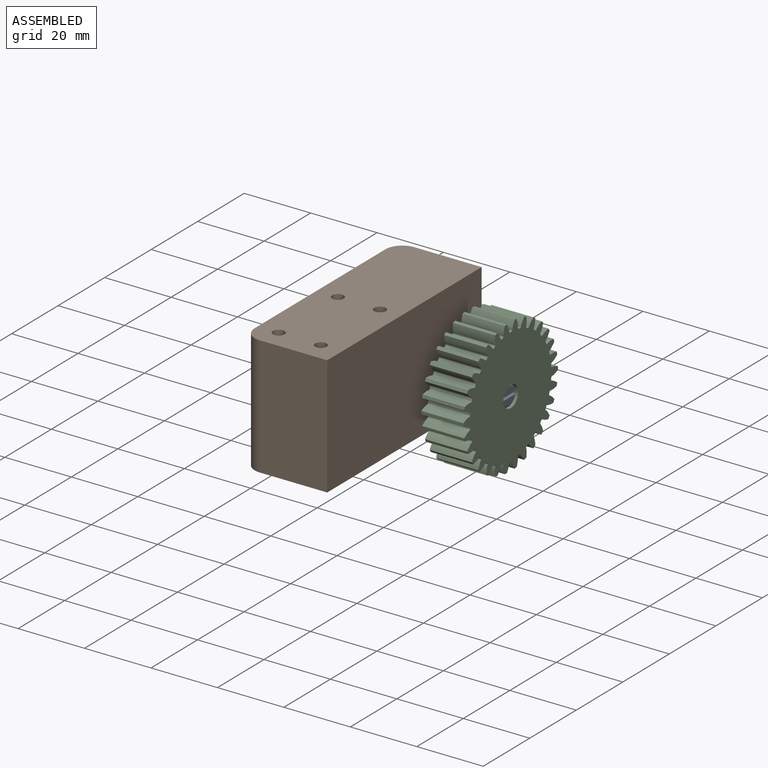
[diagram: assembled view]
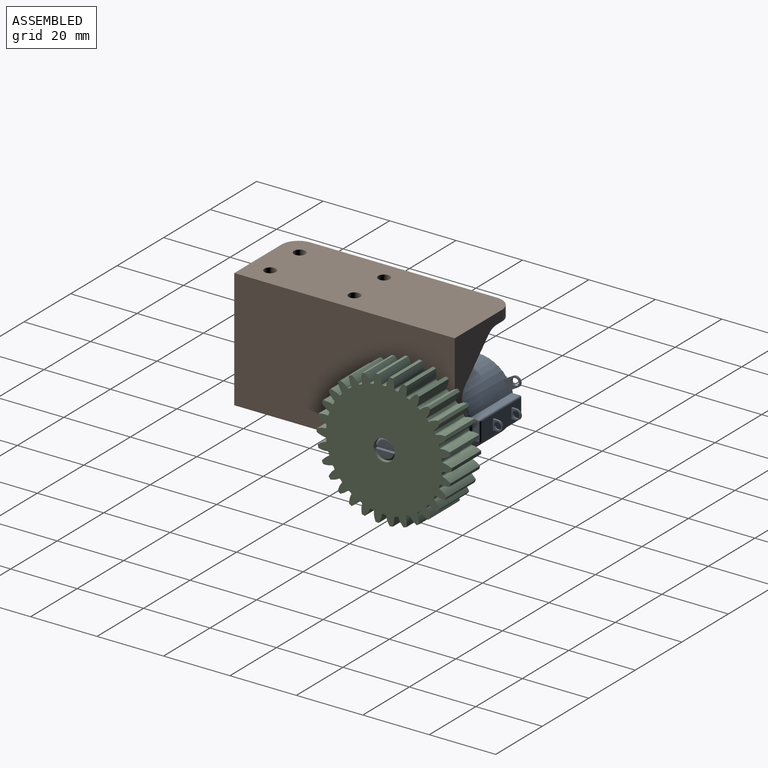
[diagram: assembled view, second angle]
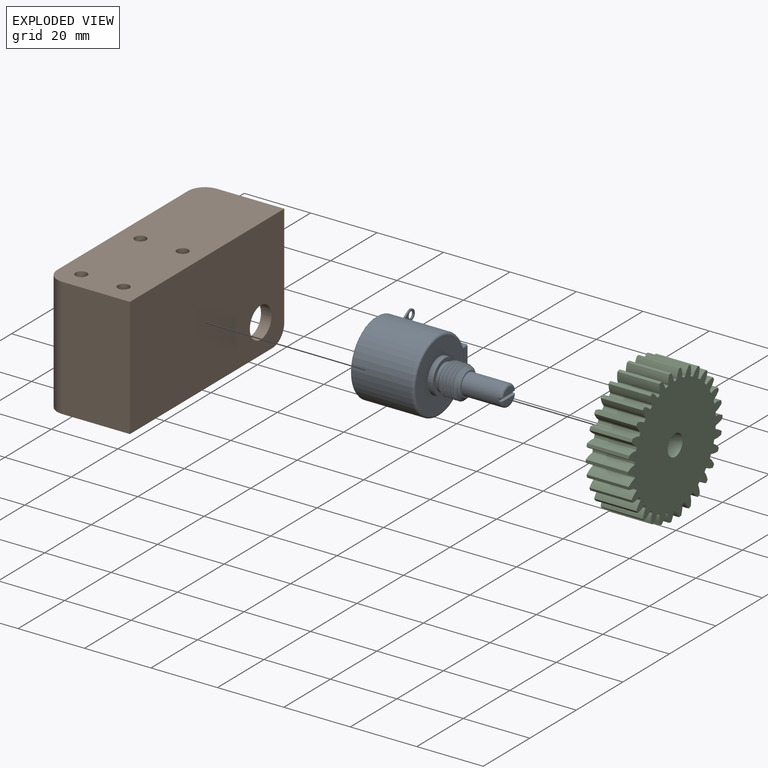
[diagram: exploded view]
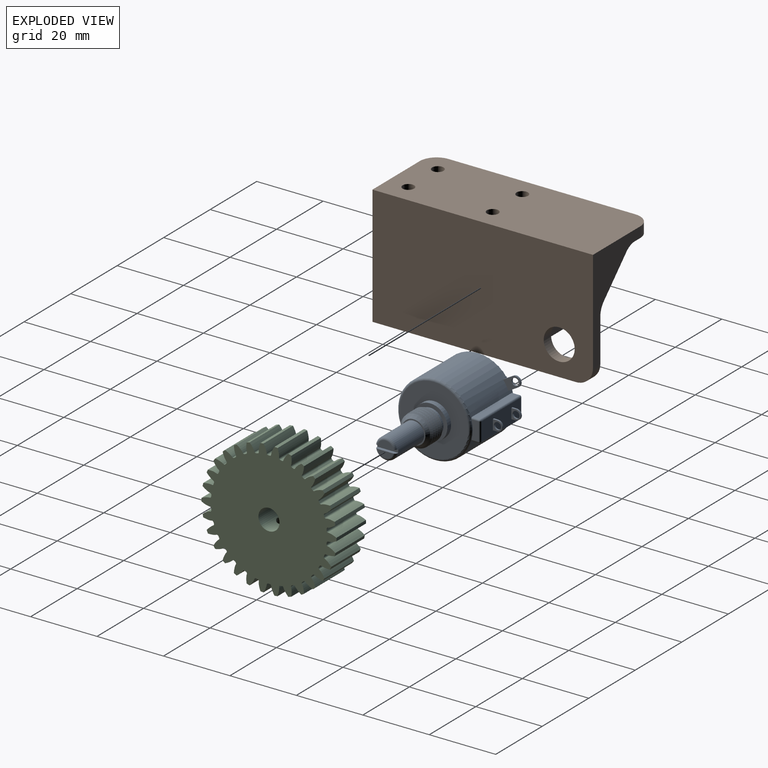
[diagram: exploded view, second angle]
ASSEMBLY  parts=3 mates=2
PART A: 63 faces, bbox 24.1x28.4x40 mm
  f0: cylinder r=4.76mm len=9.53mm, axis (0,0,-1), area 16.3mm2, adj f1,f49,f50,f51,f52,f62
  f1: cone r=3.97mm half-angle=45deg, axis (0,0,1), area 16.8mm2, adj f0,f2,f3,f48,f49,f50,f62
  f2: cylinder r=4.08mm len=8.15mm, axis (0,0,-1), area 18.6mm2, adj f1,f48,f50,f52,f62
  f3: cylinder r=3.97mm len=7.94mm, axis (0,0,1), area 19.8mm2, adj f1,f4
  f4: plane 10.32x10.32mm, normal (0,0,1), area 34.1mm2, adj f3,f5
  f5: cylinder r=5.16mm len=10.32mm, axis (0,0,-1), area 51.5mm2, adj f4,f6
  f6: plane 20.7x20.7mm, normal (0,0,1), area 252.9mm2, adj f5,f7
  f7: torus R=10.35mm, axis (0,0,1), area 81.5mm2, adj f6,f8,f39
  f8: plane 5.49x2.19mm, normal (0,0,1), area 10.7mm2, adj f7,f9,f37,f38
  f9: cylinder r=0.51mm len=2.33mm, axis (0,-1,0), area 1.8mm2, adj f8,f10,f36,f39
  f10: plane 16.89x2.33mm, normal (-1,0,0), area 39.3mm2, adj f9,f11,f35,f39
  f11: cylinder r=0.51mm len=2.33mm, axis (0,1,0), area 1.8mm2, adj f10,f12,f34,f39
  f12: plane 5.49x2.19mm, normal (0,0,-1), area 10.7mm2, adj f11,f13,f15,f33
  f13: torus R=10.73mm, axis (0,0,1), area 41.3mm2, adj f12,f14,f39
  f14: plane 21.46x21.46mm, normal (0,0,-1), area 361.8mm2, adj f13
  f15: cylinder r=0.51mm len=2.33mm, axis (0,-1,0), area 1.8mm2, adj f12,f16,f32,f39
  f16: plane 16.89x2.33mm, normal (1,0,0), area 39.3mm2, adj f15,f17,f38,f39
  f17: cylinder r=0.51mm len=16.89mm, axis (0,0,1), area 13.5mm2, adj f16,f18,f31,f32
  f18: plane 16.89x5.49mm, normal (0,1,0), area 89.6mm2, adj f17,f19,f22,f23,f24,f25,f28,f29
  f19: plane 3.05x2.81mm, normal (0,0,-1), area 4mm2, adj f18,f20,f21,f22,f24
  f20: cylinder r=1.07mm len=2.13mm, axis (0,0,1), area 3.4mm2, adj f19,f23
  f21: cylinder r=1.52mm len=3.05mm, axis (0,0,-1), area 2.4mm2, adj f19,f22,f23,f24
  f22: plane 1.28x0.51mm, normal (-1,0,0), area 0.7mm2, adj f18,f19,f21,f23
  f23: plane 3.05x2.81mm, normal (0,0,1), area 4mm2, adj f18,f20,f21,f22,f24
  f24: plane 1.28x0.51mm, normal (1,0,0), area 0.7mm2, adj f18,f19,f21,f23
  f25: plane 3.05x2.81mm, normal (0,0,-1), area 4mm2, adj f18,f26,f27,f28,f30
  f26: cylinder r=1.07mm len=2.13mm, axis (0,0,1), area 3.4mm2, adj f25,f29
  f27: cylinder r=1.52mm len=3.05mm, axis (0,0,1), area 2.4mm2, adj f25,f28,f29,f30
  f28: plane 1.28x0.51mm, normal (-1,0,0), area 0.7mm2, adj f18,f25,f27,f29
  f29: plane 3.05x2.81mm, normal (0,0,1), area 4mm2, adj f18,f26,f27,f28,f30
  f30: plane 1.28x0.51mm, normal (1,0,0), area 0.7mm2, adj f18,f25,f27,f29
  f31: sphere r=0.51mm, area 0.4mm2, adj f17,f37,f38
  f32: sphere r=0.51mm, area 0.4mm2, adj f15,f17,f33
  f33: cylinder r=0.51mm len=5.49mm, axis (1,0,0), area 4.4mm2, adj f12,f18,f32,f34
  f34: sphere r=0.51mm, area 0.6mm2, adj f11,f33,f35
  f35: cylinder r=0.51mm len=16.89mm, axis (0,0,1), area 13.5mm2, adj f10,f18,f34,f36
  f36: sphere r=0.51mm, area 0.4mm2, adj f9,f35,f37
  f37: cylinder r=0.51mm len=5.49mm, axis (-1,0,0), area 4.4mm2, adj f8,f18,f31,f36
  f38: cylinder r=0.51mm len=2.33mm, axis (0,1,0), area 1.8mm2, adj f8,f16,f31,f39
  f39: cylinder r=11.11mm len=22.23mm, axis (0,0,-1), area 1131.1mm2, adj f7,f9,f10,f11,f13,f15,f16,f38
  f40: plane 5.21x4.57mm, normal (0,0,1), area 10.3mm2, adj f39,f41,f42,f43,f44,f45,f47
  f41: cylinder r=1.07mm len=2.13mm, axis (0,0,-1), area 3.4mm2, adj f40,f46
  f42: cylinder r=1.52mm len=2.08mm, axis (0,0,1), area 1.2mm2, adj f40,f43,f46,f47
  f43: plane 0.51x0.05mm, normal (-0.5,0.87,0), area 0mm2, adj f40,f42,f44,f46
  f44: cylinder r=1.52mm len=2.08mm, axis (0,0,1), area 1.2mm2, adj f40,f43,f45,f46
  f45: plane 2.9x1.68mm, normal (0.87,0.5,0), area 1.7mm2, adj f39,f40,f44,f46
  f46: plane 5.21x4.57mm, normal (0,0,-1), area 10.3mm2, adj f39,f41,f42,f43,f44,f45,f47
  f47: plane 2.9x1.67mm, normal (-0.87,-0.5,0), area 1.7mm2, adj f39,f40,f42,f46
  f48: bspline ~8.25x2.73mm, area 0mm2, adj f1,f2
  f49: cone r=3.97mm half-angle=45deg, axis (0,0,1), area 0.2mm2, adj f0,f1,f50
  f50: bspline ~11x9.53mm, area 120.4mm2, adj f0,f1,f2,f49,f52
  f51: bspline ~11x9.53mm, area 2mm2, adj f0,f52
  f52: cone r=5.14mm half-angle=45deg, axis (0,0,-1), area 30.6mm2, adj f0,f2,f50,f51,f53,f62
  f53: plane 7.11x7.11mm, normal (0,0,1), area 8.2mm2, adj f52,f54
  f54: cylinder r=3.17mm len=11.38mm, axis (0,0,-1), area 226mm2, adj f53,f55,f57,f58,f59,f61
  f55: torus R=2.41mm, axis (0,0,1), area 9.6mm2, adj f54,f56,f57
  f56: plane 4.71x1.9mm, normal (0,0,1), area 6.7mm2, adj f55,f57
  f57: plane 6.33x1.1mm, normal (-1,0,0), area 6.1mm2, adj f54,f55,f56,f58
  f58: plane 6.34x1.02mm, normal (0,0,1), area 6.4mm2, adj f54,f57,f61
  f59: torus R=2.41mm, axis (0,0,1), area 9.6mm2, adj f54,f60,f61
  f60: plane 4.71x1.9mm, normal (0,0,1), area 6.7mm2, adj f59,f61
  f61: plane 6.33x1.1mm, normal (1,0,0), area 6.1mm2, adj f54,f58,f59,f60
  f62: bspline ~11x9.53mm, area 103.8mm2, adj f0,f1,f2,f52
PART B: 25 faces, bbox 25.4x66.4x36 mm
  f0: plane 20.32x7.42mm, normal (0,0,-1), area 145.3mm2, adj f2,f3,f19,f21,f23
  f1: plane 20.32x17.99mm, normal (-1,0,0), area 291.5mm2, adj f2,f11,f12,f15,f16,f22
  f2: plane 30.89x20.32mm, normal (0,1,0), area 234.3mm2, adj f0,f1,f8,f10,f13,f16,f19,f22
  f3: plane 56.21x35.97mm, normal (-1,0,0), area 1360.9mm2, adj f0,f10,f11,f14,f21,f23,f24
  f4: plane 35.97x20.32mm, normal (0,-1,0), area 730.8mm2, adj f8,f10,f11,f24
  f5: cylinder r=1.73mm len=35.97mm, axis (0,0,1), area 390.3mm2, adj f10,f11
  f6: cylinder r=1.73mm len=35.97mm, axis (0,0,1), area 390.3mm2, adj f10,f11
  f7: cylinder r=1.73mm len=35.97mm, axis (0,0,1), area 390.3mm2, adj f10,f11
  f8: plane 66.37x35.97mm, normal (1,0,0), area 2313.1mm2, adj f2,f4,f10,f11,f12,f22
  f9: cylinder r=1.73mm len=35.97mm, axis (0,0,1), area 390.3mm2, adj f10,f11
  f10: plane 66.37x25.4mm, normal (0,0,1), area 1637.2mm2, adj f2,f3,f4,f5,f6,f7,f8,f9
  f11: plane 61.29x25.4mm, normal (0,0,-1), area 1067.7mm2, adj f1,f3,f4,f5,f6,f7,f8,f9
  f12: cylinder r=4.67mm len=9.33mm, axis (1,0,0), area 93.1mm2, adj f1,f8
  f13: plane 20.32x9.72mm, normal (-0.71,0,-0.71), area 279.4mm2, adj f2,f16,f18,f19
  f14: plane 27.71x17.15mm, normal (0,1,0), area 427.8mm2, adj f3,f11,f15,f18,f21
  f15: cylinder r=5.08mm len=17.99mm, axis (0,0,1), area 143.5mm2, adj f1,f11,f14,f17
  f16: cylinder r=5.08mm len=20.32mm, axis (0,-1,0), area 81.1mm2, adj f1,f2,f13,f17
  f17: sphere r=5.08mm, area 20.3mm2, adj f15,f16,f18
  f18: cylinder r=5.08mm len=13.32mm, axis (0.71,0,-0.71), area 109.7mm2, adj f13,f14,f17,f20
  f19: cylinder r=5.08mm len=20.32mm, axis (0,-1,0), area 81.1mm2, adj f0,f2,f13,f20
  f20: sphere r=5.08mm, area 20.3mm2, adj f18,f19,f21
  f21: cylinder r=5.08mm len=7.42mm, axis (1,0,0), area 59.2mm2, adj f0,f3,f14,f20
  f22: cylinder r=5.08mm len=5.08mm, axis (1,0,0), area 25.3mm2, adj f1,f2,f8,f11
  f23: cylinder r=5.08mm len=5.08mm, axis (0,0,1), area 25.3mm2, adj f0,f2,f3,f10
  f24: cylinder r=5.08mm len=35.97mm, axis (0,0,-1), area 287mm2, adj f3,f4,f10,f11
PART C: 311 faces, bbox 40.6x40.5x12.7 mm
  f0: plane 12.7x0.15mm, normal (-0.06,-1,0), area 1.9mm2, adj f1,f2,f3,f4
  f1: cylinder r=0.48mm len=12.7mm, axis (0,0,-1), area 7.7mm2, adj f0,f3,f4,f5
  f2: extruded ~12.7x0.63mm, area 8.1mm2, adj f0,f3,f4,f6
  f3: plane 40.64x40.51mm, normal (0,0,-1), area 1095.3mm2, adj f0,f1,f2,f5,f6,f7,f8,f9
  f4: plane 40.64x40.51mm, normal (0,0,1), area 1095.3mm2, adj f0,f1,f2,f5,f6,f7,f8,f9
  f5: cylinder r=17.46mm len=12.7mm, axis (0,0,-1), area 4.8mm2, adj f1,f3,f4,f7
  f6: extruded ~12.7x1.8mm, area 24.4mm2, adj f2,f3,f4,f8
  f7: cylinder r=0.48mm len=12.7mm, axis (0,0,-1), area 7.7mm2, adj f3,f4,f5,f9
  f8: cylinder r=20.32mm len=12.7mm, axis (0,0,-1), area 11.9mm2, adj f3,f4,f6,f10
  f9: plane 12.7x0.15mm, normal (0.15,0.99,0), area 1.9mm2, adj f3,f4,f7,f11
  f10: extruded ~12.7x1.8mm, area 24.4mm2, adj f3,f4,f8,f12
  f11: extruded ~12.7x0.6mm, area 8.1mm2, adj f3,f4,f9,f13
  f12: extruded ~12.7x0.63mm, area 8.1mm2, adj f3,f4,f10,f14
  f13: extruded ~12.7x1.62mm, area 24.4mm2, adj f3,f4,f11,f15
  f14: plane 12.7x0.15mm, normal (-0.06,1,0), area 1.9mm2, adj f3,f4,f12,f16
  f15: cylinder r=20.32mm len=12.7mm, axis (0,0,-1), area 11.9mm2, adj f3,f4,f13,f17
  f16: cylinder r=0.48mm len=12.7mm, axis (0,0,-1), area 7.7mm2, adj f3,f4,f14,f18
  f17: extruded ~12.7x1.89mm, area 24.4mm2, adj f3,f4,f15,f19
  f18: cylinder r=17.46mm len=12.7mm, axis (0,0,-1), area 4.8mm2, adj f3,f4,f16,f20
  f19: extruded ~12.7x0.64mm, area 8.1mm2, adj f3,f4,f17,f21
  f20: cylinder r=0.48mm len=12.7mm, axis (0,0,-1), area 7.7mm2, adj f3,f4,f18,f22
  f21: plane 12.7x0.14mm, normal (-0.27,-0.96,0), area 1.9mm2, adj f3,f4,f19,f23
  f22: plane 12.7x0.15mm, normal (0.15,-0.99,0), area 1.9mm2, adj f3,f4,f20,f24
  f23: cylinder r=0.48mm len=12.7mm, axis (0,0,-1), area 7.7mm2, adj f3,f4,f21,f25
  f24: extruded ~12.7x0.6mm, area 8.1mm2, adj f3,f4,f22,f26
  f25: cylinder r=17.46mm len=12.7mm, axis (0,0,-1), area 4.8mm2, adj f3,f4,f23,f27
  f26: extruded ~12.7x1.62mm, area 24.4mm2, adj f3,f4,f24,f28
  f27: cylinder r=0.48mm len=12.7mm, axis (0,0,-1), area 7.7mm2, adj f3,f4,f25,f29
  f28: cylinder r=20.32mm len=12.7mm, axis (0,0,-1), area 11.9mm2, adj f3,f4,f26,f30
  f29: plane 12.7x0.14mm, normal (0.35,0.94,0), area 1.9mm2, adj f3,f4,f27,f31
  f30: extruded ~12.7x1.89mm, area 24.4mm2, adj f3,f4,f28,f32
  f31: extruded ~12.7x0.55mm, area 8.1mm2, adj f3,f4,f29,f33
  f32: extruded ~12.7x0.64mm, area 8.1mm2, adj f3,f4,f30,f34
  f33: extruded ~12.7x1.37mm, area 24.4mm2, adj f3,f4,f31,f35
  f34: plane 12.7x0.14mm, normal (-0.27,0.96,0), area 1.9mm2, adj f3,f4,f32,f36
  f35: cylinder r=20.32mm len=12.7mm, axis (0,0,-1), area 11.9mm2, adj f3,f4,f33,f37
  f36: cylinder r=0.48mm len=12.7mm, axis (0,0,-1), area 7.7mm2, adj f3,f4,f34,f38
  f37: extruded ~12.7x1.91mm, area 24.4mm2, adj f3,f4,f35,f39
  f38: cylinder r=17.46mm len=12.7mm, axis (0,0,-1), area 4.8mm2, adj f3,f4,f36,f40
  f39: extruded ~12.7x0.61mm, area 8.1mm2, adj f3,f4,f37,f41
  f40: cylinder r=0.48mm len=12.7mm, axis (0,0,-1), area 7.7mm2, adj f3,f4,f38,f42
  f41: plane 12.7x0.13mm, normal (-0.46,-0.89,0), area 1.9mm2, adj f3,f4,f39,f43
  f42: plane 12.7x0.14mm, normal (0.35,-0.94,0), area 1.9mm2, adj f3,f4,f40,f44
  f43: cylinder r=0.48mm len=12.7mm, axis (0,0,-1), area 7.7mm2, adj f3,f4,f41,f45
  f44: extruded ~12.7x0.55mm, area 8.1mm2, adj f3,f4,f42,f46
  f45: cylinder r=17.46mm len=12.7mm, axis (0,0,-1), area 4.8mm2, adj f3,f4,f43,f47
  f46: extruded ~12.7x1.37mm, area 24.4mm2, adj f3,f4,f44,f48
  f47: cylinder r=0.48mm len=12.7mm, axis (0,0,-1), area 7.7mm2, adj f3,f4,f45,f49
  f48: cylinder r=20.32mm len=12.7mm, axis (0,0,-1), area 11.9mm2, adj f3,f4,f46,f50
  f49: plane 12.7x0.12mm, normal (0.54,0.84,0), area 1.9mm2, adj f3,f4,f47,f51
  f50: extruded ~12.7x1.91mm, area 24.4mm2, adj f3,f4,f48,f52
  f51: extruded ~12.7x0.47mm, area 8.1mm2, adj f3,f4,f49,f53
  f52: extruded ~12.7x0.61mm, area 8.1mm2, adj f3,f4,f50,f54
  f53: extruded ~12.7x1.59mm, area 24.4mm2, adj f3,f4,f51,f55
  f54: plane 12.7x0.13mm, normal (-0.46,0.89,0), area 1.9mm2, adj f3,f4,f52,f56
  f55: cylinder r=20.32mm len=12.7mm, axis (0,0,-1), area 11.9mm2, adj f3,f4,f53,f57
  f56: cylinder r=0.48mm len=12.7mm, axis (0,0,-1), area 7.7mm2, adj f3,f4,f54,f58
  f57: extruded ~12.7x1.84mm, area 24.4mm2, adj f3,f4,f55,f59
  f58: cylinder r=17.46mm len=12.7mm, axis (0,0,-1), area 4.8mm2, adj f3,f4,f56,f60
  f59: extruded ~12.7x0.56mm, area 8.1mm2, adj f3,f4,f57,f61
  f60: cylinder r=0.48mm len=12.7mm, axis (0,0,-1), area 7.7mm2, adj f3,f4,f58,f62
  f61: plane 12.7x0.11mm, normal (-0.64,-0.77,0), area 1.9mm2, adj f3,f4,f59,f63
  f62: plane 12.7x0.12mm, normal (0.54,-0.84,0), area 1.9mm2, adj f3,f4,f60,f64
  f63: cylinder r=0.48mm len=12.7mm, axis (0,0,-1), area 7.7mm2, adj f3,f4,f61,f65
  f64: extruded ~12.7x0.47mm, area 8.1mm2, adj f3,f4,f62,f66
  f65: cylinder r=17.46mm len=12.7mm, axis (0,0,-1), area 4.8mm2, adj f3,f4,f63,f67
  f66: extruded ~12.7x1.59mm, area 24.4mm2, adj f3,f4,f64,f68
  f67: cylinder r=0.48mm len=12.7mm, axis (0,0,-1), area 7.7mm2, adj f3,f4,f65,f69
  f68: cylinder r=20.32mm len=12.7mm, axis (0,0,-1), area 11.9mm2, adj f3,f4,f66,f70
  f69: plane 12.7x0.11mm, normal (0.7,0.71,0), area 1.9mm2, adj f3,f4,f67,f71
  f70: extruded ~12.7x1.84mm, area 24.4mm2, adj f3,f4,f68,f72
  f71: extruded ~12.7x0.52mm, area 8.1mm2, adj f3,f4,f69,f73
  f72: extruded ~12.7x0.56mm, area 8.1mm2, adj f3,f4,f70,f74
  f73: extruded ~12.7x1.78mm, area 24.4mm2, adj f3,f4,f71,f75
  f74: plane 12.7x0.11mm, normal (-0.64,0.77,0), area 1.9mm2, adj f3,f4,f72,f76
  f75: cylinder r=20.32mm len=12.7mm, axis (0,0,-1), area 11.9mm2, adj f3,f4,f73,f77
  f76: cylinder r=0.48mm len=12.7mm, axis (0,0,-1), area 7.7mm2, adj f3,f4,f74,f78
  f77: extruded ~12.7x1.69mm, area 24.4mm2, adj f3,f4,f75,f79
  f78: cylinder r=17.46mm len=12.7mm, axis (0,0,-1), area 4.8mm2, adj f3,f4,f76,f80
  f79: extruded ~12.7x0.48mm, area 8.1mm2, adj f3,f4,f77,f81
  f80: cylinder r=0.48mm len=12.7mm, axis (0,0,-1), area 7.7mm2, adj f3,f4,f78,f82
  f81: plane 12.7x0.12mm, normal (-0.78,-0.62,0), area 1.9mm2, adj f3,f4,f79,f83
  f82: plane 12.7x0.11mm, normal (0.7,-0.71,0), area 1.9mm2, adj f3,f4,f80,f84
  f83: cylinder r=0.48mm len=12.7mm, axis (0,0,-1), area 7.7mm2, adj f3,f4,f81,f85
  f84: extruded ~12.7x0.52mm, area 8.1mm2, adj f3,f4,f82,f86
  f85: cylinder r=17.46mm len=12.7mm, axis (0,0,-1), area 4.8mm2, adj f3,f4,f83,f87
  f86: extruded ~12.7x1.78mm, area 24.4mm2, adj f3,f4,f84,f88
  f87: cylinder r=0.48mm len=12.7mm, axis (0,0,-1), area 7.7mm2, adj f3,f4,f85,f89
  f88: cylinder r=20.32mm len=12.7mm, axis (0,0,-1), area 11.9mm2, adj f3,f4,f86,f90
  f89: plane 12.7x0.12mm, normal (0.83,0.55,0), area 1.9mm2, adj f3,f4,f87,f91
  f90: extruded ~12.7x1.69mm, area 24.4mm2, adj f3,f4,f88,f92
  f91: extruded ~12.7x0.59mm, area 8.1mm2, adj f3,f4,f89,f93
  f92: extruded ~12.7x0.48mm, area 8.1mm2, adj f3,f4,f90,f94
  f93: extruded ~12.7x1.88mm, area 24.4mm2, adj f3,f4,f91,f95
  f94: plane 12.7x0.12mm, normal (-0.78,0.62,0), area 1.9mm2, adj f3,f4,f92,f96
  f95: cylinder r=20.32mm len=12.7mm, axis (0,0,-1), area 11.9mm2, adj f3,f4,f93,f97
  f96: cylinder r=0.48mm len=12.7mm, axis (0,0,-1), area 7.7mm2, adj f3,f4,f94,f98
  f97: extruded ~12.7x1.47mm, area 24.4mm2, adj f3,f4,f95,f99
  f98: cylinder r=17.46mm len=12.7mm, axis (0,0,-1), area 4.8mm2, adj f3,f4,f96,f100
  f99: extruded ~12.7x0.51mm, area 8.1mm2, adj f3,f4,f97,f101
  f100: cylinder r=0.48mm len=12.7mm, axis (0,0,-1), area 7.7mm2, adj f3,f4,f98,f102
  f101: plane 12.7x0.13mm, normal (-0.89,-0.45,0), area 1.9mm2, adj f3,f4,f99,f103
  f102: plane 12.7x0.12mm, normal (0.83,-0.55,0), area 1.9mm2, adj f3,f4,f100,f104
  f103: cylinder r=0.48mm len=12.7mm, axis (0,0,-1), area 7.7mm2, adj f3,f4,f101,f105
  f104: extruded ~12.7x0.59mm, area 8.1mm2, adj f3,f4,f102,f106
  f105: cylinder r=17.46mm len=12.7mm, axis (0,0,-1), area 4.8mm2, adj f3,f4,f103,f107
  f106: extruded ~12.7x1.88mm, area 24.4mm2, adj f3,f4,f104,f108
  f107: cylinder r=0.48mm len=12.7mm, axis (0,0,-1), area 7.7mm2, adj f3,f4,f105,f109
  f108: cylinder r=20.32mm len=12.7mm, axis (0,0,-1), area 11.9mm2, adj f3,f4,f106,f110
  f109: plane 12.7x0.14mm, normal (0.93,0.37,0), area 1.9mm2, adj f3,f4,f107,f111
  f110: extruded ~12.7x1.47mm, area 24.4mm2, adj f3,f4,f108,f112
  f111: extruded ~12.7x0.63mm, area 8.1mm2, adj f3,f4,f109,f113
  f112: extruded ~12.7x0.51mm, area 8.1mm2, adj f3,f4,f110,f114
  f113: extruded ~12.7x1.91mm, area 24.4mm2, adj f3,f4,f111,f115
  f114: plane 12.7x0.13mm, normal (-0.89,0.45,0), area 1.9mm2, adj f3,f4,f112,f116
  f115: cylinder r=20.32mm len=12.7mm, axis (0,0,-1), area 11.9mm2, adj f3,f4,f113,f117
  f116: cylinder r=0.48mm len=12.7mm, axis (0,0,-1), area 7.7mm2, adj f3,f4,f114,f118
  f117: extruded ~12.7x1.5mm, area 24.4mm2, adj f3,f4,f115,f119
  f118: cylinder r=17.46mm len=12.7mm, axis (0,0,-1), area 4.8mm2, adj f3,f4,f116,f120
  f119: extruded ~12.7x0.58mm, area 8.1mm2, adj f3,f4,f117,f121
  f120: cylinder r=0.48mm len=12.7mm, axis (0,0,-1), area 7.7mm2, adj f3,f4,f118,f122
  f121: plane 12.7x0.14mm, normal (-0.97,-0.25,0), area 1.9mm2, adj f3,f4,f119,f123
  f122: plane 12.7x0.14mm, normal (0.93,-0.37,0), area 1.9mm2, adj f3,f4,f120,f124
  f123: cylinder r=0.48mm len=12.7mm, axis (0,0,-1), area 7.7mm2, adj f3,f4,f121,f125
  f124: extruded ~12.7x0.63mm, area 8.1mm2, adj f3,f4,f122,f126
  f125: cylinder r=17.46mm len=12.7mm, axis (0,0,-1), area 4.8mm2, adj f3,f4,f123,f127
  f126: extruded ~12.7x1.91mm, area 24.4mm2, adj f3,f4,f124,f128
  f127: cylinder r=0.48mm len=12.7mm, axis (0,0,-1), area 7.7mm2, adj f3,f4,f125,f129
  f128: cylinder r=20.32mm len=12.7mm, axis (0,0,-1), area 11.9mm2, adj f3,f4,f126,f130
  f129: plane 12.7x0.15mm, normal (0.99,0.16,0), area 1.9mm2, adj f3,f4,f127,f131
  f130: extruded ~12.7x1.5mm, area 24.4mm2, adj f3,f4,f128,f132
  f131: extruded ~12.7x0.64mm, area 8.1mm2, adj f3,f4,f129,f133
  f132: extruded ~12.7x0.58mm, area 8.1mm2, adj f3,f4,f130,f134
  f133: extruded ~12.7x1.85mm, area 24.4mm2, adj f3,f4,f131,f135
  f134: plane 12.7x0.14mm, normal (-0.97,0.25,0), area 1.9mm2, adj f3,f4,f132,f136
  f135: cylinder r=20.32mm len=12.7mm, axis (0,0,-1), area 11.9mm2, adj f3,f4,f133,f137
  f136: cylinder r=0.48mm len=12.7mm, axis (0,0,-1), area 7.7mm2, adj f3,f4,f134,f138
  f137: extruded ~12.7x1.72mm, area 24.4mm2, adj f3,f4,f135,f139
  f138: cylinder r=17.46mm len=12.7mm, axis (0,0,-1), area 4.8mm2, adj f3,f4,f136,f140
  f139: extruded ~12.7x0.62mm, area 8.1mm2, adj f3,f4,f137,f141
  f140: cylinder r=0.48mm len=12.7mm, axis (0,0,-1), area 7.7mm2, adj f3,f4,f138,f142
  f141: plane 12.7x0.15mm, normal (-1,-0.04,0), area 1.9mm2, adj f3,f4,f139,f143
  f142: plane 12.7x0.15mm, normal (0.99,-0.16,0), area 1.9mm2, adj f3,f4,f140,f144
  f143: cylinder r=0.48mm len=12.7mm, axis (0,0,-1), area 7.7mm2, adj f3,f4,f141,f145
  f144: extruded ~12.7x0.64mm, area 8.1mm2, adj f3,f4,f142,f146
  f145: cylinder r=17.46mm len=12.7mm, axis (0,0,-1), area 4.8mm2, adj f3,f4,f143,f147
  f146: extruded ~12.7x1.85mm, area 24.4mm2, adj f3,f4,f144,f148
  f147: cylinder r=0.48mm len=12.7mm, axis (0,0,-1), area 7.7mm2, adj f3,f4,f145,f149
  f148: cylinder r=20.32mm len=12.7mm, axis (0,0,-1), area 11.9mm2, adj f3,f4,f146,f150
  f149: plane 12.7x0.15mm, normal (1,-0.04,0), area 1.9mm2, adj f3,f4,f147,f151
  f150: extruded ~12.7x1.72mm, area 24.4mm2, adj f3,f4,f148,f152
  f151: extruded ~12.7x0.62mm, area 8.1mm2, adj f3,f4,f149,f153
  f152: extruded ~12.7x0.62mm, area 8.1mm2, adj f3,f4,f150,f154
  f153: extruded ~12.7x1.72mm, area 24.4mm2, adj f3,f4,f151,f155
  f154: plane 12.7x0.15mm, normal (-1,0.04,0), area 1.9mm2, adj f3,f4,f152,f156
  f155: cylinder r=20.32mm len=12.7mm, axis (0,0,-1), area 11.9mm2, adj f3,f4,f153,f157
  f156: cylinder r=0.48mm len=12.7mm, axis (0,0,-1), area 7.7mm2, adj f3,f4,f154,f158
  f157: extruded ~12.7x1.85mm, area 24.4mm2, adj f3,f4,f155,f159
  f158: cylinder r=17.46mm len=12.7mm, axis (0,0,-1), area 4.8mm2, adj f3,f4,f156,f160
  f159: extruded ~12.7x0.64mm, area 8.1mm2, adj f3,f4,f157,f161
  f160: cylinder r=0.48mm len=12.7mm, axis (0,0,-1), area 7.7mm2, adj f3,f4,f158,f162
  f161: plane 12.7x0.15mm, normal (-0.99,0.16,0), area 1.9mm2, adj f3,f4,f159,f163
  f162: plane 12.7x0.15mm, normal (1,0.04,0), area 1.9mm2, adj f3,f4,f160,f164
  f163: cylinder r=0.48mm len=12.7mm, axis (0,0,-1), area 7.7mm2, adj f3,f4,f161,f165
  f164: extruded ~12.7x0.62mm, area 8.1mm2, adj f3,f4,f162,f166
  f165: cylinder r=17.46mm len=12.7mm, axis (0,0,-1), area 4.8mm2, adj f3,f4,f163,f167
  f166: extruded ~12.7x1.72mm, area 24.4mm2, adj f3,f4,f164,f168
  f167: cylinder r=0.48mm len=12.7mm, axis (0,0,-1), area 7.7mm2, adj f3,f4,f165,f169
  f168: cylinder r=20.32mm len=12.7mm, axis (0,0,-1), area 11.9mm2, adj f3,f4,f166,f170
  f169: plane 12.7x0.14mm, normal (0.97,-0.25,0), area 1.9mm2, adj f3,f4,f167,f171
  f170: extruded ~12.7x1.85mm, area 22mm2, adj f3,f4,f168,f172,f303,f310
  f171: extruded ~12.7x0.58mm, area 8.1mm2, adj f3,f4,f169,f173
  f172: extruded ~5.22x0.64mm, area 3.3mm2, adj f3,f170,f174,f310
  f173: extruded ~12.7x1.5mm, area 24.4mm2, adj f3,f4,f171,f175
  f174: plane 5.13x0.15mm, normal (-0.99,-0.16,0), area 0.8mm2, adj f3,f172,f176,f310
  f175: cylinder r=20.32mm len=12.7mm, axis (0,0,-1), area 11.9mm2, adj f3,f4,f173,f177
  f176: cylinder r=0.48mm len=5.12mm, axis (0,0,-1), area 3.1mm2, adj f3,f174,f178,f310
  f177: extruded ~12.7x1.91mm, area 24.4mm2, adj f3,f4,f175,f179
  f178: cylinder r=17.46mm len=4.97mm, axis (0,0,-1), area 1.9mm2, adj f3,f176,f180,f310
  f179: extruded ~12.7x0.63mm, area 8.1mm2, adj f3,f4,f177,f181
  f180: cylinder r=0.48mm len=5.12mm, axis (0,0,-1), area 3.1mm2, adj f3,f178,f182,f310
  f181: plane 12.7x0.14mm, normal (-0.93,0.37,0), area 1.9mm2, adj f3,f4,f179,f183
  f182: plane 5.13x0.14mm, normal (0.97,0.25,0), area 0.8mm2, adj f3,f180,f184,f310
  f183: cylinder r=0.48mm len=12.7mm, axis (0,0,-1), area 7.7mm2, adj f3,f4,f181,f185
  f184: extruded ~5.22x0.58mm, area 3.3mm2, adj f3,f182,f186,f310
  f185: cylinder r=17.46mm len=12.7mm, axis (0,0,-1), area 4.8mm2, adj f3,f4,f183,f187
  f186: extruded ~12.7x1.5mm, area 22mm2, adj f3,f4,f184,f188,f309,f310
  f187: cylinder r=0.48mm len=12.7mm, axis (0,0,-1), area 7.7mm2, adj f3,f4,f185,f189
  f188: cylinder r=20.32mm len=12.7mm, axis (0,0,-1), area 11.9mm2, adj f3,f4,f186,f190
  f189: plane 12.7x0.13mm, normal (0.89,-0.45,0), area 1.9mm2, adj f3,f4,f187,f191
  f190: extruded ~12.7x1.91mm, area 24.4mm2, adj f3,f4,f188,f192
  f191: extruded ~12.7x0.51mm, area 8.1mm2, adj f3,f4,f189,f193
  f192: extruded ~12.7x0.63mm, area 8.1mm2, adj f3,f4,f190,f194
  f193: extruded ~12.7x1.47mm, area 24.4mm2, adj f3,f4,f191,f195
  f194: plane 12.7x0.14mm, normal (-0.93,-0.37,0), area 1.9mm2, adj f3,f4,f192,f196
  f195: cylinder r=20.32mm len=12.7mm, axis (0,0,-1), area 11.9mm2, adj f3,f4,f193,f197
  f196: cylinder r=0.48mm len=12.7mm, axis (0,0,-1), area 7.7mm2, adj f3,f4,f194,f198
  f197: extruded ~12.7x1.88mm, area 24.4mm2, adj f3,f4,f195,f199
  f198: cylinder r=17.46mm len=12.7mm, axis (0,0,-1), area 4.8mm2, adj f3,f4,f196,f200
  f199: extruded ~12.7x0.59mm, area 8.1mm2, adj f3,f4,f197,f201
  f200: cylinder r=0.48mm len=12.7mm, axis (0,0,-1), area 7.7mm2, adj f3,f4,f198,f202
  f201: plane 12.7x0.12mm, normal (-0.83,0.55,0), area 1.9mm2, adj f3,f4,f199,f203
  f202: plane 12.7x0.13mm, normal (0.89,0.45,0), area 1.9mm2, adj f3,f4,f200,f204
  f203: cylinder r=0.48mm len=12.7mm, axis (0,0,-1), area 7.7mm2, adj f3,f4,f201,f205
  f204: extruded ~12.7x0.51mm, area 8.1mm2, adj f3,f4,f202,f206
  f205: cylinder r=17.46mm len=12.7mm, axis (0,0,-1), area 4.8mm2, adj f3,f4,f203,f207
  f206: extruded ~12.7x1.47mm, area 24.4mm2, adj f3,f4,f204,f208
  f207: cylinder r=0.48mm len=12.7mm, axis (0,0,-1), area 7.7mm2, adj f3,f4,f205,f209
  f208: cylinder r=20.32mm len=12.7mm, axis (0,0,-1), area 11.9mm2, adj f3,f4,f206,f210
  f209: plane 12.7x0.12mm, normal (0.78,-0.62,0), area 1.9mm2, adj f3,f4,f207,f211
  f210: extruded ~12.7x1.88mm, area 24.4mm2, adj f3,f4,f208,f212
  f211: extruded ~12.7x0.48mm, area 8.1mm2, adj f3,f4,f209,f213
  f212: extruded ~12.7x0.59mm, area 8.1mm2, adj f3,f4,f210,f214
  f213: extruded ~12.7x1.69mm, area 24.4mm2, adj f3,f4,f211,f215
  f214: plane 12.7x0.12mm, normal (-0.83,-0.55,0), area 1.9mm2, adj f3,f4,f212,f216
  f215: cylinder r=20.32mm len=12.7mm, axis (0,0,-1), area 11.9mm2, adj f3,f4,f213,f217
  f216: cylinder r=0.48mm len=12.7mm, axis (0,0,-1), area 7.7mm2, adj f3,f4,f214,f218
  f217: extruded ~12.7x1.78mm, area 24.4mm2, adj f3,f4,f215,f219
  f218: cylinder r=17.46mm len=12.7mm, axis (0,0,-1), area 4.8mm2, adj f3,f4,f216,f220
  f219: extruded ~12.7x0.52mm, area 8.1mm2, adj f3,f4,f217,f221
  f220: cylinder r=0.48mm len=12.7mm, axis (0,0,-1), area 7.7mm2, adj f3,f4,f218,f222
  f221: plane 12.7x0.11mm, normal (-0.7,0.71,0), area 1.9mm2, adj f3,f4,f219,f223
  f222: plane 12.7x0.12mm, normal (0.78,0.62,0), area 1.9mm2, adj f3,f4,f220,f224
  f223: cylinder r=0.48mm len=12.7mm, axis (0,0,-1), area 7.7mm2, adj f3,f4,f221,f225
  f224: extruded ~12.7x0.48mm, area 8.1mm2, adj f3,f4,f222,f226
  f225: cylinder r=17.46mm len=12.7mm, axis (0,0,-1), area 4.8mm2, adj f3,f4,f223,f227
  f226: extruded ~12.7x1.69mm, area 24.4mm2, adj f3,f4,f224,f228
  f227: cylinder r=0.48mm len=12.7mm, axis (0,0,-1), area 7.7mm2, adj f3,f4,f225,f229
  f228: cylinder r=20.32mm len=12.7mm, axis (0,0,-1), area 11.9mm2, adj f3,f4,f226,f230
  f229: plane 12.7x0.11mm, normal (0.64,-0.77,0), area 1.9mm2, adj f3,f4,f227,f231
  f230: extruded ~12.7x1.78mm, area 24.4mm2, adj f3,f4,f228,f232
  f231: extruded ~12.7x0.56mm, area 8.1mm2, adj f3,f4,f229,f233
  f232: extruded ~12.7x0.52mm, area 8.1mm2, adj f3,f4,f230,f234
  f233: extruded ~12.7x1.84mm, area 24.4mm2, adj f3,f4,f231,f235
  f234: plane 12.7x0.11mm, normal (-0.7,-0.71,0), area 1.9mm2, adj f3,f4,f232,f236
  f235: cylinder r=20.32mm len=12.7mm, axis (0,0,-1), area 11.9mm2, adj f3,f4,f233,f237
  f236: cylinder r=0.48mm len=12.7mm, axis (0,0,-1), area 7.7mm2, adj f3,f4,f234,f238
  f237: extruded ~12.7x1.59mm, area 24.4mm2, adj f3,f4,f235,f239
  f238: cylinder r=17.46mm len=12.7mm, axis (0,0,-1), area 4.8mm2, adj f3,f4,f236,f240
  f239: extruded ~12.7x0.47mm, area 8.1mm2, adj f3,f4,f237,f241
  f240: cylinder r=0.48mm len=12.7mm, axis (0,0,-1), area 7.7mm2, adj f3,f4,f238,f242
  f241: plane 12.7x0.12mm, normal (-0.54,0.84,0), area 1.9mm2, adj f3,f4,f239,f243
  f242: plane 12.7x0.11mm, normal (0.64,0.77,0), area 1.9mm2, adj f3,f4,f240,f244
  f243: cylinder r=0.48mm len=12.7mm, axis (0,0,-1), area 7.7mm2, adj f3,f4,f241,f245
  f244: extruded ~12.7x0.56mm, area 8.1mm2, adj f3,f4,f242,f246
  f245: cylinder r=17.46mm len=12.7mm, axis (0,0,-1), area 4.8mm2, adj f3,f4,f243,f247
  f246: extruded ~12.7x1.84mm, area 24.4mm2, adj f3,f4,f244,f248
  f247: cylinder r=0.48mm len=12.7mm, axis (0,0,-1), area 7.7mm2, adj f3,f4,f245,f249
  f248: cylinder r=20.32mm len=12.7mm, axis (0,0,-1), area 11.9mm2, adj f3,f4,f246,f250
  f249: plane 12.7x0.13mm, normal (0.46,-0.89,0), area 1.9mm2, adj f3,f4,f247,f251
  f250: extruded ~12.7x1.59mm, area 24.4mm2, adj f3,f4,f248,f252
  f251: extruded ~12.7x0.61mm, area 8.1mm2, adj f3,f4,f249,f253
  f252: extruded ~12.7x0.47mm, area 8.1mm2, adj f3,f4,f250,f254
  f253: extruded ~12.7x1.91mm, area 24.4mm2, adj f3,f4,f251,f255
  f254: plane 12.7x0.12mm, normal (-0.54,-0.84,0), area 1.9mm2, adj f3,f4,f252,f256
  f255: cylinder r=20.32mm len=12.7mm, axis (0,0,-1), area 11.9mm2, adj f3,f4,f253,f257
  f256: cylinder r=0.48mm len=12.7mm, axis (0,0,-1), area 7.7mm2, adj f3,f4,f254,f258
  f257: extruded ~12.7x1.37mm, area 24.4mm2, adj f3,f4,f255,f259
  f258: cylinder r=17.46mm len=12.7mm, axis (0,0,-1), area 4.8mm2, adj f3,f4,f256,f260
  f259: extruded ~12.7x0.55mm, area 8.1mm2, adj f3,f4,f257,f261
  f260: cylinder r=0.48mm len=12.7mm, axis (0,0,-1), area 7.7mm2, adj f3,f4,f258,f262
  f261: plane 12.7x0.14mm, normal (-0.35,0.94,0), area 1.9mm2, adj f3,f4,f259,f263
  f262: plane 12.7x0.13mm, normal (0.46,0.89,0), area 1.9mm2, adj f3,f4,f260,f264
  f263: cylinder r=0.48mm len=12.7mm, axis (0,0,-1), area 7.7mm2, adj f3,f4,f261,f265
  f264: extruded ~12.7x0.61mm, area 8.1mm2, adj f3,f4,f262,f266
  f265: cylinder r=17.46mm len=12.7mm, axis (0,0,-1), area 4.8mm2, adj f3,f4,f263,f267
  f266: extruded ~12.7x1.91mm, area 24.4mm2, adj f3,f4,f264,f268
  f267: cylinder r=0.48mm len=12.7mm, axis (0,0,-1), area 7.7mm2, adj f3,f4,f265,f269
  f268: cylinder r=20.32mm len=12.7mm, axis (0,0,-1), area 11.9mm2, adj f3,f4,f266,f270
  f269: plane 12.7x0.14mm, normal (0.27,-0.96,0), area 1.9mm2, adj f3,f4,f267,f271
  f270: extruded ~12.7x1.37mm, area 24.4mm2, adj f3,f4,f268,f272
  f271: extruded ~12.7x0.64mm, area 8.1mm2, adj f3,f4,f269,f273
  f272: extruded ~12.7x0.55mm, area 8.1mm2, adj f3,f4,f270,f274
  f273: extruded ~12.7x1.89mm, area 24.4mm2, adj f3,f4,f271,f275
  f274: plane 12.7x0.14mm, normal (-0.35,-0.94,0), area 1.9mm2, adj f3,f4,f272,f276
  f275: cylinder r=20.32mm len=12.7mm, axis (0,0,-1), area 11.9mm2, adj f3,f4,f273,f277
  f276: cylinder r=0.48mm len=12.7mm, axis (0,0,-1), area 7.7mm2, adj f3,f4,f274,f278
  f277: extruded ~12.7x1.62mm, area 24.4mm2, adj f3,f4,f275,f279
  f278: cylinder r=17.46mm len=12.7mm, axis (0,0,-1), area 4.8mm2, adj f3,f4,f276,f280
  f279: extruded ~12.7x0.6mm, area 8.1mm2, adj f3,f4,f277,f281
  f280: cylinder r=0.48mm len=12.7mm, axis (0,0,-1), area 7.7mm2, adj f3,f4,f278,f282
  f281: plane 12.7x0.15mm, normal (-0.15,0.99,0), area 1.9mm2, adj f3,f4,f279,f283
  f282: plane 12.7x0.14mm, normal (0.27,0.96,0), area 1.9mm2, adj f3,f4,f280,f284
  f283: cylinder r=0.48mm len=12.7mm, axis (0,0,-1), area 7.7mm2, adj f3,f4,f281,f285
  f284: extruded ~12.7x0.64mm, area 8.1mm2, adj f3,f4,f282,f286
  f285: cylinder r=17.46mm len=12.7mm, axis (0,0,-1), area 4.8mm2, adj f3,f4,f283,f287
  f286: extruded ~12.7x1.89mm, area 24.4mm2, adj f3,f4,f284,f288
  f287: cylinder r=0.48mm len=12.7mm, axis (0,0,-1), area 7.7mm2, adj f3,f4,f285,f289
  f288: cylinder r=20.32mm len=12.7mm, axis (0,0,-1), area 11.9mm2, adj f3,f4,f286,f290
  f289: plane 12.7x0.15mm, normal (0.06,-1,0), area 1.9mm2, adj f3,f4,f287,f291
  f290: extruded ~12.7x1.62mm, area 24.4mm2, adj f3,f4,f288,f292
  f291: extruded ~12.7x0.63mm, area 8.1mm2, adj f3,f4,f289,f293
  f292: extruded ~12.7x0.6mm, area 8.1mm2, adj f3,f4,f290,f294
  f293: extruded ~12.7x1.8mm, area 24.4mm2, adj f3,f4,f291,f295
  f294: plane 12.7x0.15mm, normal (-0.15,-0.99,0), area 1.9mm2, adj f3,f4,f292,f296
  f295: cylinder r=20.32mm len=12.7mm, axis (0,0,-1), area 11.9mm2, adj f3,f4,f293,f297
  f296: cylinder r=0.48mm len=12.7mm, axis (0,0,-1), area 7.7mm2, adj f3,f4,f294,f298
  f297: extruded ~12.7x1.8mm, area 24.4mm2, adj f3,f4,f295,f299
  f298: cylinder r=17.46mm len=12.7mm, axis (0,0,-1), area 4.8mm2, adj f3,f4,f296,f300
  f299: extruded ~12.7x0.63mm, area 8.1mm2, adj f3,f4,f297,f301
  f300: cylinder r=0.48mm len=12.7mm, axis (0,0,-1), area 7.7mm2, adj f3,f4,f298,f301
  f301: plane 12.7x0.15mm, normal (0.06,1,0), area 1.9mm2, adj f3,f4,f299,f300
  f302: cylinder r=3.17mm len=12.7mm, axis (0,0,1), area 247.1mm2, adj f3,f4,f310
  f303: extruded ~5.22x0.64mm, area 3.3mm2, adj f4,f170,f304,f310
  f304: plane 5.13x0.15mm, normal (-0.99,-0.16,0), area 0.8mm2, adj f4,f303,f305,f310
  f305: cylinder r=0.48mm len=5.12mm, axis (0,0,-1), area 3.1mm2, adj f4,f304,f306,f310
  f306: cylinder r=17.46mm len=4.97mm, axis (0,0,-1), area 1.9mm2, adj f4,f305,f307,f310
  f307: cylinder r=0.48mm len=5.12mm, axis (0,0,-1), area 3.1mm2, adj f4,f306,f308,f310
  f308: plane 5.13x0.14mm, normal (0.97,0.25,0), area 0.8mm2, adj f4,f307,f309,f310
  f309: extruded ~5.22x0.58mm, area 3.3mm2, adj f4,f186,f308,f310
  f310: cylinder r=1.4mm len=17.18mm, axis (0.21,-0.98,0), area 137.9mm2, adj f170,f172,f174,f176,f178,f180,f182,f184
PLACE A rot(axis=(0,1,0),90deg) t=(-11.9,22.4,-8.78)mm
PLACE B t=(12.71,-2.06,18.3)mm
PLACE C rot(axis=(-0.58,-0.58,0.58),120deg) t=(28.58,22.4,-8.78)mm
MATE fastened A.f0 <-> B.f12  axis (1,0,0) through (15.88,22.4,-8.78)mm
MATE cylindrical C.f302 <-> A.f0  axis (-1,0,0) through (15.88,22.4,-8.78)mm
